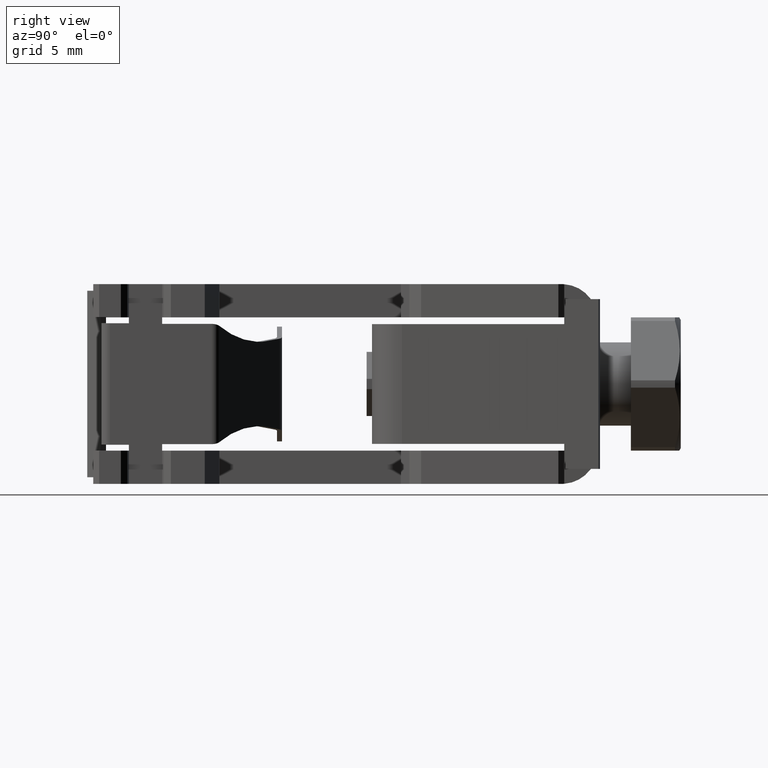
[diagram: clean part render]
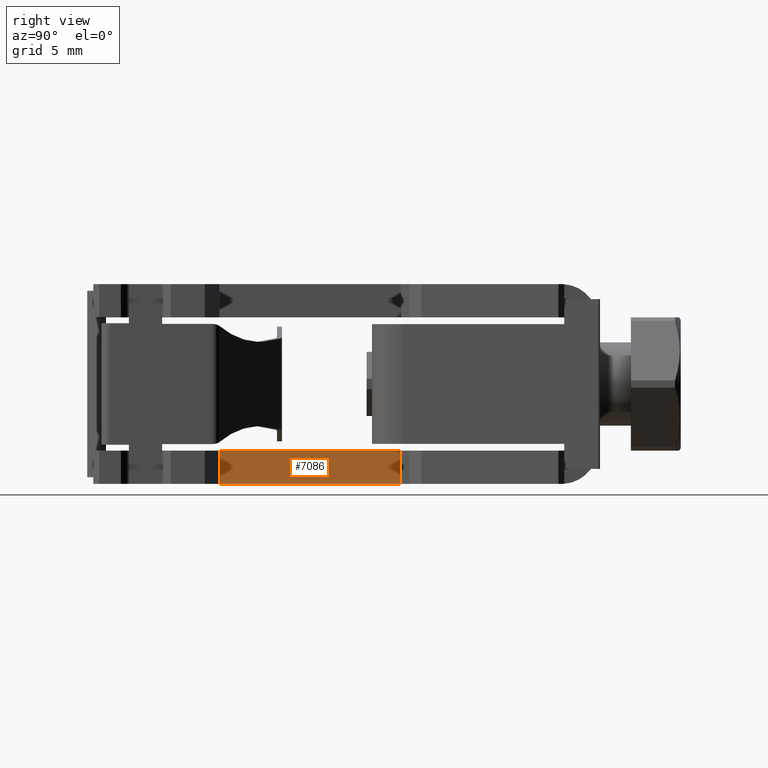
[diagram: same view with one face highlighted and labeled with its STEP entity id]
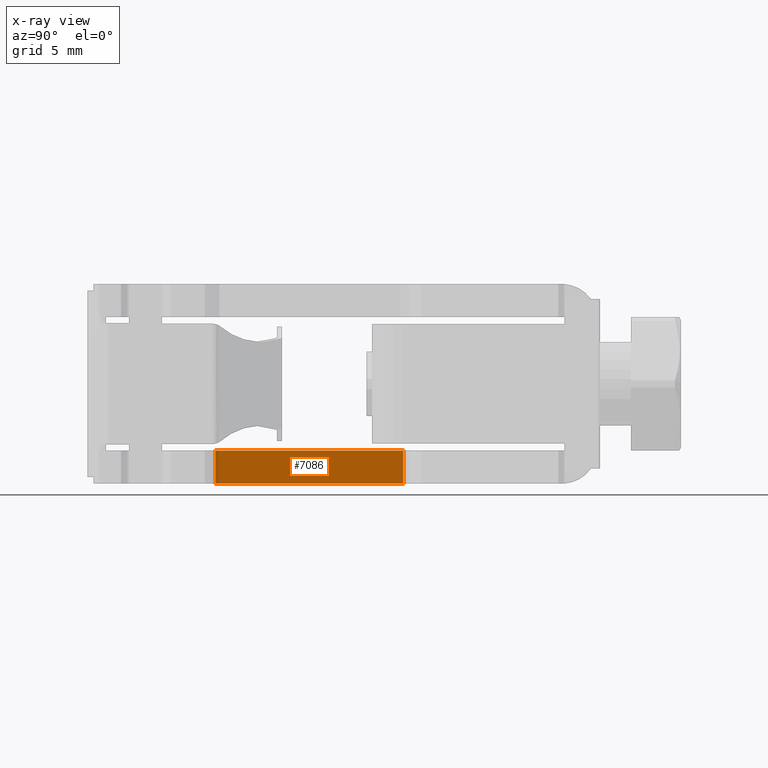
[diagram: x-ray of the same camera — body ghosted, the highlighted face saturated]
A machine part, right view. The second image highlights one B-rep face of the part: STEP entity #7086.
The next image is the same camera in x-ray: the body ghosted, the highlighted face saturated — about 2% of this face is hidden behind the body in this view.
In plain terms, the highlighted planar face has unit normal (-1, 0, 0).
Its self-contained STEP definition (entity closure, byte-faithful):
#1634 = VERTEX_POINT ( 'NONE', #6128 ) ;
#1725 = VERTEX_POINT ( 'NONE', #5356 ) ;
#1735 = VERTEX_POINT ( 'NONE', #5370 ) ;
#1747 = VERTEX_POINT ( 'NONE', #4320 ) ;
#4320 = CARTESIAN_POINT ( 'NONE',  ( 4.534778230129950800, 5.968093257257579300, 0.0000000000000000000 ) ) ;
#5356 = CARTESIAN_POINT ( 'NONE',  ( 4.534778230129951700, 17.25400000000296800, 1.999999999999998200 ) ) ;
#5370 = CARTESIAN_POINT ( 'NONE',  ( 4.534778230129950800, 17.25400000000296800, 0.0000000000000000000 ) ) ;
#5738 = EDGE_LOOP ( 'NONE', ( #8825, #8816, #8888, #8889 ) ) ;
#6128 = CARTESIAN_POINT ( 'NONE',  ( 4.534778230129950800, 5.968093257257582900, 1.999999999999994400 ) ) ;
#7086 = ADVANCED_FACE ( 'NONE', ( #10507 ), #10466, .F. ) ;
#7481 = EDGE_CURVE ( 'NONE', #1735, #1747, #9046, .T. ) ;
#7556 = EDGE_CURVE ( 'NONE', #1725, #1735, #9316, .T. ) ;
#7564 = EDGE_CURVE ( 'NONE', #1747, #1634, #9346, .T. ) ;
#7589 = EDGE_CURVE ( 'NONE', #1725, #1634, #9438, .T. ) ;
#7658 = VECTOR ( 'NONE', #9040, 1000.000000000000000 ) ;
#7755 = VECTOR ( 'NONE', #9444, 1000.000000000000000 ) ;
#7775 = VECTOR ( 'NONE', #9313, 1000.000000000000000 ) ;
#7790 = VECTOR ( 'NONE', #9340, 1000.000000000000000 ) ;
#8341 = AXIS2_PLACEMENT_3D ( 'NONE', #10476, #10481, #10508 ) ;
#8816 = ORIENTED_EDGE ( 'NONE', *, *, #7556, .F. ) ;
#8825 = ORIENTED_EDGE ( 'NONE', *, *, #7481, .F. ) ;
#8888 = ORIENTED_EDGE ( 'NONE', *, *, #7589, .T. ) ;
#8889 = ORIENTED_EDGE ( 'NONE', *, *, #7564, .F. ) ;
#9033 = CARTESIAN_POINT ( 'NONE',  ( 4.534778230129950800, -6.839759337385610000, 0.0000000000000000000 ) ) ;
#9040 = DIRECTION ( 'NONE',  ( -0.0000000000000000000, -1.000000000000000000, 0.0000000000000000000 ) ) ;
#9046 = LINE ( 'NONE', #9033, #7658 ) ;
#9311 = CARTESIAN_POINT ( 'NONE',  ( 4.534778230129950800, 17.25400000000296800, 12.00000000000000000 ) ) ;
#9313 = DIRECTION ( 'NONE',  ( -0.0000000000000000000, -0.0000000000000000000, -1.000000000000000000 ) ) ;
#9316 = LINE ( 'NONE', #9311, #7775 ) ;
#9340 = DIRECTION ( 'NONE',  ( 0.0000000000000000000, 0.0000000000000000000, 1.000000000000000000 ) ) ;
#9343 = CARTESIAN_POINT ( 'NONE',  ( 4.534778230129950800, 5.968093257257580200, 12.00000000000000000 ) ) ;
#9346 = LINE ( 'NONE', #9343, #7790 ) ;
#9438 = LINE ( 'NONE', #9443, #7755 ) ;
#9443 = CARTESIAN_POINT ( 'NONE',  ( 4.534778230129952600, 39.10754016891900900, 2.000000000000000400 ) ) ;
#9444 = DIRECTION ( 'NONE',  ( -0.0000000000000000000, -1.000000000000000000, -9.876146906881995500E-017 ) ) ;
#10466 = PLANE ( 'NONE',  #8341 ) ;
#10476 = CARTESIAN_POINT ( 'NONE',  ( 4.534778230129950800, -6.839759337385610000, 12.00000000000000000 ) ) ;
#10481 = DIRECTION ( 'NONE',  ( -1.000000000000000000, 0.0000000000000000000, 0.0000000000000000000 ) ) ;
#10507 = FACE_OUTER_BOUND ( 'NONE', #5738, .T. ) ;
#10508 = DIRECTION ( 'NONE',  ( 0.0000000000000000000, 0.0000000000000000000, 1.000000000000000000 ) ) ;